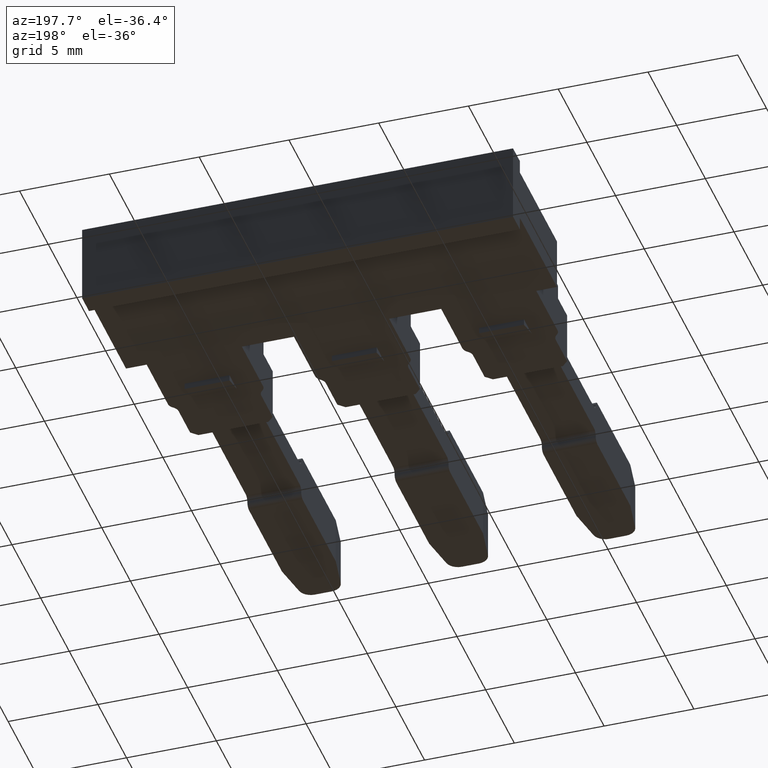
[diagram: clean part render]
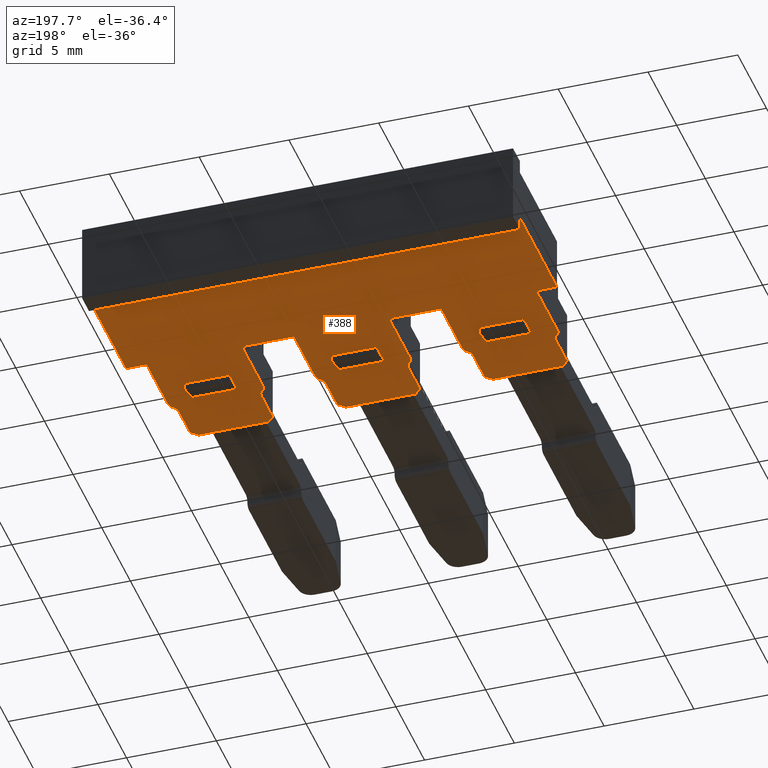
[diagram: same view with one face highlighted and labeled with its STEP entity id]
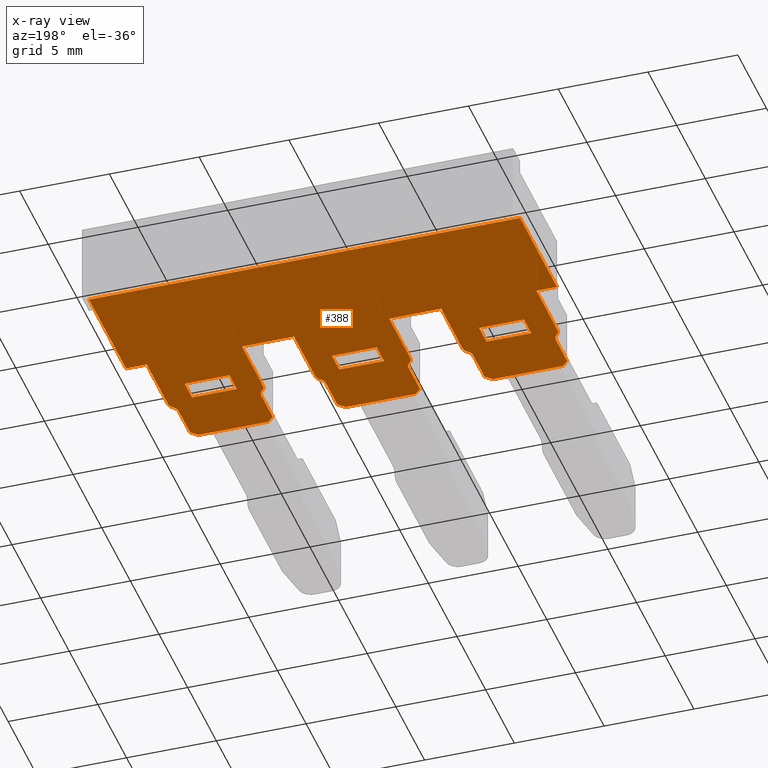
[diagram: x-ray of the same camera — body ghosted, the highlighted face saturated]
A machine part, auxiliary view. The second image highlights one B-rep face of the part: STEP entity #388.
The next image is the same camera in x-ray: the body ghosted, the highlighted face saturated — about 0% of this face is hidden behind the body in this view.
In plain terms, the highlighted planar face has unit normal (0, 0, 1).
Its self-contained STEP definition (entity closure, byte-faithful):
#2 = EDGE_CURVE ( 'NONE', #539, #521, #635, .T. ) ;
#10 = EDGE_CURVE ( 'NONE', #492, #526, #656, .T. ) ;
#16 = EDGE_CURVE ( 'NONE', #1622, #1625, #713, .T. ) ;
#21 = EDGE_CURVE ( 'NONE', #514, #526, #672, .T. ) ;
#23 = EDGE_CURVE ( 'NONE', #1540, #510, #715, .T. ) ;
#24 = EDGE_CURVE ( 'NONE', #499, #500, #3558, .T. ) ;
#52 = EDGE_CURVE ( 'NONE', #492, #510, #794, .T. ) ;
#54 = EDGE_CURVE ( 'NONE', #514, #539, #3577, .T. ) ;
#60 = EDGE_CURVE ( 'NONE', #1495, #491, #831, .T. ) ;
#62 = EDGE_CURVE ( 'NONE', #518, #504, #814, .T. ) ;
#65 = EDGE_CURVE ( 'NONE', #533, #507, #854, .T. ) ;
#67 = EDGE_CURVE ( 'NONE', #491, #502, #834, .T. ) ;
#68 = EDGE_CURVE ( 'NONE', #527, #501, #844, .T. ) ;
#71 = EDGE_CURVE ( 'NONE', #1625, #551, #843, .T. ) ;
#72 = EDGE_CURVE ( 'NONE', #1540, #500, #852, .T. ) ;
#73 = EDGE_CURVE ( 'NONE', #530, #584, #876, .T. ) ;
#79 = EDGE_CURVE ( 'NONE', #524, #489, #3573, .T. ) ;
#80 = EDGE_CURVE ( 'NONE', #544, #499, #884, .T. ) ;
#81 = EDGE_CURVE ( 'NONE', #517, #504, #892, .T. ) ;
#82 = EDGE_CURVE ( 'NONE', #546, #523, #863, .T. ) ;
#85 = EDGE_CURVE ( 'NONE', #1496, #1622, #861, .T. ) ;
#86 = EDGE_CURVE ( 'NONE', #538, #498, #916, .T. ) ;
#88 = EDGE_CURVE ( 'NONE', #546, #494, #3673, .T. ) ;
#89 = EDGE_CURVE ( 'NONE', #544, #1496, #3653, .T. ) ;
#94 = EDGE_CURVE ( 'NONE', #524, #522, #904, .T. ) ;
#96 = EDGE_CURVE ( 'NONE', #548, #525, #925, .T. ) ;
#100 = EDGE_CURVE ( 'NONE', #517, #535, #974, .T. ) ;
#101 = EDGE_CURVE ( 'NONE', #584, #512, #943, .T. ) ;
#106 = EDGE_CURVE ( 'NONE', #534, #569, #954, .T. ) ;
#107 = EDGE_CURVE ( 'NONE', #520, #537, #960, .T. ) ;
#108 = EDGE_CURVE ( 'NONE', #495, #521, #3679, .T. ) ;
#109 = EDGE_CURVE ( 'NONE', #540, #520, #3649, .T. ) ;
#110 = EDGE_CURVE ( 'NONE', #508, #522, #951, .T. ) ;
#112 = EDGE_CURVE ( 'NONE', #604, #559, #991, .T. ) ;
#113 = EDGE_CURVE ( 'NONE', #552, #559, #971, .T. ) ;
#116 = EDGE_CURVE ( 'NONE', #503, #497, #963, .T. ) ;
#120 = EDGE_CURVE ( 'NONE', #490, #1495, #1006, .T. ) ;
#121 = EDGE_CURVE ( 'NONE', #490, #537, #994, .T. ) ;
#125 = EDGE_CURVE ( 'NONE', #493, #552, #1008, .T. ) ;
#127 = EDGE_CURVE ( 'NONE', #540, #519, #1011, .T. ) ;
#131 = EDGE_CURVE ( 'NONE', #569, #564, #1061, .T. ) ;
#132 = EDGE_CURVE ( 'NONE', #497, #525, #3644, .T. ) ;
#138 = EDGE_CURVE ( 'NONE', #496, #489, #1049, .T. ) ;
#139 = EDGE_CURVE ( 'NONE', #498, #508, #1080, .T. ) ;
#146 = EDGE_CURVE ( 'NONE', #506, #495, #1103, .T. ) ;
#154 = EDGE_CURVE ( 'NONE', #505, #564, #1105, .T. ) ;
#155 = EDGE_CURVE ( 'NONE', #548, #501, #1106, .T. ) ;
#156 = EDGE_CURVE ( 'NONE', #534, #505, #1112, .T. ) ;
#157 = EDGE_CURVE ( 'NONE', #493, #604, #1107, .T. ) ;
#162 = EDGE_CURVE ( 'NONE', #494, #532, #1111, .T. ) ;
#164 = EDGE_CURVE ( 'NONE', #527, #523, #1161, .T. ) ;
#165 = EDGE_CURVE ( 'NONE', #519, #507, #3746, .T. ) ;
#166 = EDGE_CURVE ( 'NONE', #533, #535, #1135, .T. ) ;
#167 = EDGE_CURVE ( 'NONE', #530, #542, #1158, .T. ) ;
#173 = EDGE_CURVE ( 'NONE', #551, #532, #3703, .T. ) ;
#178 = EDGE_CURVE ( 'NONE', #542, #512, #1205, .T. ) ;
#179 = EDGE_CURVE ( 'NONE', #506, #502, #1177, .T. ) ;
#181 = EDGE_CURVE ( 'NONE', #518, #496, #3714, .T. ) ;
#185 = EDGE_CURVE ( 'NONE', #503, #538, #3699, .T. ) ;
#388 = ADVANCED_FACE ( 'NONE', ( #3468, #3446, #3461, #3459 ), #3483, .F. ) ;
#489 = VERTEX_POINT ( 'NONE', #2832 ) ;
#490 = VERTEX_POINT ( 'NONE', #2845 ) ;
#491 = VERTEX_POINT ( 'NONE', #2833 ) ;
#492 = VERTEX_POINT ( 'NONE', #2855 ) ;
#493 = VERTEX_POINT ( 'NONE', #2885 ) ;
#494 = VERTEX_POINT ( 'NONE', #2870 ) ;
#495 = VERTEX_POINT ( 'NONE', #2812 ) ;
#496 = VERTEX_POINT ( 'NONE', #2775 ) ;
#497 = VERTEX_POINT ( 'NONE', #2857 ) ;
#498 = VERTEX_POINT ( 'NONE', #2891 ) ;
#499 = VERTEX_POINT ( 'NONE', #2850 ) ;
#500 = VERTEX_POINT ( 'NONE', #2854 ) ;
#501 = VERTEX_POINT ( 'NONE', #2835 ) ;
#502 = VERTEX_POINT ( 'NONE', #2848 ) ;
#503 = VERTEX_POINT ( 'NONE', #2834 ) ;
#504 = VERTEX_POINT ( 'NONE', #2851 ) ;
#505 = VERTEX_POINT ( 'NONE', #2864 ) ;
#506 = VERTEX_POINT ( 'NONE', #2886 ) ;
#507 = VERTEX_POINT ( 'NONE', #2875 ) ;
#508 = VERTEX_POINT ( 'NONE', #2884 ) ;
#510 = VERTEX_POINT ( 'NONE', #2836 ) ;
#512 = VERTEX_POINT ( 'NONE', #2868 ) ;
#514 = VERTEX_POINT ( 'NONE', #2837 ) ;
#517 = VERTEX_POINT ( 'NONE', #2838 ) ;
#518 = VERTEX_POINT ( 'NONE', #2847 ) ;
#519 = VERTEX_POINT ( 'NONE', #2846 ) ;
#520 = VERTEX_POINT ( 'NONE', #2887 ) ;
#521 = VERTEX_POINT ( 'NONE', #2840 ) ;
#522 = VERTEX_POINT ( 'NONE', #2877 ) ;
#523 = VERTEX_POINT ( 'NONE', #2867 ) ;
#524 = VERTEX_POINT ( 'NONE', #2849 ) ;
#525 = VERTEX_POINT ( 'NONE', #2841 ) ;
#526 = VERTEX_POINT ( 'NONE', #2874 ) ;
#527 = VERTEX_POINT ( 'NONE', #2860 ) ;
#530 = VERTEX_POINT ( 'NONE', #2863 ) ;
#532 = VERTEX_POINT ( 'NONE', #2844 ) ;
#533 = VERTEX_POINT ( 'NONE', #2852 ) ;
#534 = VERTEX_POINT ( 'NONE', #2853 ) ;
#535 = VERTEX_POINT ( 'NONE', #2856 ) ;
#537 = VERTEX_POINT ( 'NONE', #2883 ) ;
#538 = VERTEX_POINT ( 'NONE', #2869 ) ;
#539 = VERTEX_POINT ( 'NONE', #2859 ) ;
#540 = VERTEX_POINT ( 'NONE', #2858 ) ;
#542 = VERTEX_POINT ( 'NONE', #2873 ) ;
#544 = VERTEX_POINT ( 'NONE', #2890 ) ;
#546 = VERTEX_POINT ( 'NONE', #2879 ) ;
#548 = VERTEX_POINT ( 'NONE', #2881 ) ;
#551 = VERTEX_POINT ( 'NONE', #2889 ) ;
#552 = VERTEX_POINT ( 'NONE', #2892 ) ;
#559 = VERTEX_POINT ( 'NONE', #2944 ) ;
#564 = VERTEX_POINT ( 'NONE', #2904 ) ;
#569 = VERTEX_POINT ( 'NONE', #2909 ) ;
#584 = VERTEX_POINT ( 'NONE', #2920 ) ;
#604 = VERTEX_POINT ( 'NONE', #2947 ) ;
#627 = CARTESIAN_POINT ( 'NONE',  ( 1132.290914677786500, 662.3843095299471300, -1.734723475976807100E-015 ) ) ;
#635 = LINE ( 'NONE', #627, #3546 ) ;
#656 = LINE ( 'NONE', #669, #3563 ) ;
#661 = DIRECTION ( 'NONE',  ( -0.7071156533801817900, 0.7070979088815909600, 0.0000000000000000000 ) ) ;
#669 = CARTESIAN_POINT ( 'NONE',  ( 1132.494466376607300, 659.9592804752735400, -1.734723475976807100E-015 ) ) ;
#672 = LINE ( 'NONE', #707, #3540 ) ;
#677 = DIRECTION ( 'NONE',  ( -0.7071067811865474600, 0.7071067811865474600, 0.0000000000000000000 ) ) ;
#679 = DIRECTION ( 'NONE',  ( 0.0000000000000000000, -1.000000000000000000, -0.0000000000000000000 ) ) ;
#695 = DIRECTION ( 'NONE',  ( 1.000000000000000000, 0.0000000000000000000, -0.0000000000000000000 ) ) ;
#701 = CARTESIAN_POINT ( 'NONE',  ( 1136.944468391975100, 666.4412584401425200, 0.0000000000000000000 ) ) ;
#707 = CARTESIAN_POINT ( 'NONE',  ( 1132.494468933274400, 662.7578638201010800, 0.0000000000000000000 ) ) ;
#713 = LINE ( 'NONE', #701, #3538 ) ;
#715 = LINE ( 'NONE', #724, #3556 ) ;
#724 = CARTESIAN_POINT ( 'NONE',  ( 1136.744471264188200, 659.6092820011524500, -1.734723475976807100E-015 ) ) ;
#730 = DIRECTION ( 'NONE',  ( 0.0000000000000000000, 0.0000000000000000000, 1.000000000000000000 ) ) ;
#734 = DIRECTION ( 'NONE',  ( -0.7071067811865474600, -0.7071067811865474600, 0.0000000000000000000 ) ) ;
#741 = CARTESIAN_POINT ( 'NONE',  ( 1137.594469738307700, 661.9736505214604000, 0.0000000000000000000 ) ) ;
#749 = DIRECTION ( 'NONE',  ( -1.000000000000000000, 1.332267629550334700E-012, 0.0000000000000000000 ) ) ;
#794 = LINE ( 'NONE', #795, #3629 ) ;
#795 = CARTESIAN_POINT ( 'NONE',  ( 1136.944468391975100, 659.6092820011524500, 0.0000000000000000000 ) ) ;
#797 = DIRECTION ( 'NONE',  ( 1.000000000000000000, 0.0000000000000000000, -0.0000000000000000000 ) ) ;
#810 = CARTESIAN_POINT ( 'NONE',  ( 1145.144468391975100, 659.6092820011524500, 0.0000000000000000000 ) ) ;
#811 = DIRECTION ( 'NONE',  ( 0.0000000000000000000, 0.0000000000000000000, 1.000000000000000000 ) ) ;
#813 = DIRECTION ( 'NONE',  ( -0.0000000000000000000, 1.000000000000000000, 0.0000000000000000000 ) ) ;
#814 = LINE ( 'NONE', #851, #3580 ) ;
#816 = DIRECTION ( 'NONE',  ( 0.0000000000000000000, -1.000000000000000000, -0.0000000000000000000 ) ) ;
#825 = CARTESIAN_POINT ( 'NONE',  ( 1136.944468391975100, 672.9078760720548200, 0.0000000000000000000 ) ) ;
#826 = CARTESIAN_POINT ( 'NONE',  ( 1131.994468426628400, 661.9736497164254800, 0.0000000000000000000 ) ) ;
#828 = DIRECTION ( 'NONE',  ( -1.000000000000000000, -0.0000000000000000000, 0.0000000000000000000 ) ) ;
#831 = LINE ( 'NONE', #825, #3583 ) ;
#834 = LINE ( 'NONE', #837, #3603 ) ;
#837 = CARTESIAN_POINT ( 'NONE',  ( 1130.994470802330200, 662.7578638201010800, 0.0000000000000000000 ) ) ;
#841 = DIRECTION ( 'NONE',  ( 0.0000000000000000000, -1.000000000000000000, -0.0000000000000000000 ) ) ;
#843 = LINE ( 'NONE', #894, #3593 ) ;
#844 = LINE ( 'NONE', #810, #3604 ) ;
#849 = DIRECTION ( 'NONE',  ( -1.000000000000000000, -6.661331397871163300E-013, 0.0000000000000000000 ) ) ;
#851 = CARTESIAN_POINT ( 'NONE',  ( 1148.894468933274800, 662.7578638201010800, 0.0000000000000000000 ) ) ;
#852 = LINE ( 'NONE', #901, #3614 ) ;
#854 = LINE ( 'NONE', #855, #3599 ) ;
#855 = CARTESIAN_POINT ( 'NONE',  ( 1153.494474435155100, 662.7578638201010800, 0.0000000000000000000 ) ) ;
#856 = CARTESIAN_POINT ( 'NONE',  ( 1152.444467917465300, 662.9078760720548200, -8.673617379884035500E-016 ) ) ;
#860 = CARTESIAN_POINT ( 'NONE',  ( 1140.694468933274500, 662.7578638201010800, 0.0000000000000000000 ) ) ;
#861 = LINE ( 'NONE', #864, #3672 ) ;
#863 = LINE ( 'NONE', #860, #3662 ) ;
#864 = CARTESIAN_POINT ( 'NONE',  ( 1137.444466905616100, 662.7578638201010800, 0.0000000000000000000 ) ) ;
#865 = DIRECTION ( 'NONE',  ( -0.0000000000000000000, 1.000000000000000000, 0.0000000000000000000 ) ) ;
#871 = DIRECTION ( 'NONE',  ( -1.000000000000000000, -2.220454189456208500E-013, 0.0000000000000000000 ) ) ;
#876 = LINE ( 'NONE', #856, #3616 ) ;
#879 = CARTESIAN_POINT ( 'NONE',  ( 1149.044463937493400, 662.7378604502047200, 0.0000000000000000000 ) ) ;
#880 = DIRECTION ( 'NONE',  ( -0.7071067811865474600, 0.7071067811865474600, 0.0000000000000000000 ) ) ;
#881 = DIRECTION ( 'NONE',  ( 0.0000000000000000000, -1.000000000000000000, -0.0000000000000000000 ) ) ;
#883 = DIRECTION ( 'NONE',  ( 0.0000000000000000000, 0.0000000000000000000, 1.000000000000000000 ) ) ;
#884 = LINE ( 'NONE', #885, #3685 ) ;
#885 = CARTESIAN_POINT ( 'NONE',  ( 1137.240915542681300, 662.3272031070188200, 0.0000000000000000000 ) ) ;
#887 = DIRECTION ( 'NONE',  ( -0.7070870645724811600, -0.7071264972508609600, 0.0000000000000000000 ) ) ;
#892 = LINE ( 'NONE', #899, #3640 ) ;
#893 = DIRECTION ( 'NONE',  ( 1.000000000000000000, 0.0000000000000000000, -0.0000000000000000000 ) ) ;
#894 = CARTESIAN_POINT ( 'NONE',  ( 1140.344467917465200, 662.7578638201010800, 0.0000000000000000000 ) ) ;
#896 = DIRECTION ( 'NONE',  ( 0.0000000000000000000, -1.000000000000000000, -0.0000000000000000000 ) ) ;
#897 = DIRECTION ( 'NONE',  ( -1.000000000000000000, 0.0000000000000000000, 0.0000000000000000000 ) ) ;
#899 = CARTESIAN_POINT ( 'NONE',  ( 1149.244469547574200, 659.6092820011524500, -1.734723475976807100E-015 ) ) ;
#901 = CARTESIAN_POINT ( 'NONE',  ( 1137.094469738309300, 662.7578638201010800, 0.0000000000000000000 ) ) ;
#903 = DIRECTION ( 'NONE',  ( -1.000000000000000000, -6.661331397871163300E-013, 0.0000000000000000000 ) ) ;
#904 = LINE ( 'NONE', #945, #3645 ) ;
#905 = DIRECTION ( 'NONE',  ( 0.0000000000000000000, 0.0000000000000000000, 1.000000000000000000 ) ) ;
#913 = DIRECTION ( 'NONE',  ( -0.0000000000000000000, 1.000000000000000000, 0.0000000000000000000 ) ) ;
#916 = LINE ( 'NONE', #930, #3676 ) ;
#917 = DIRECTION ( 'NONE',  ( 0.0000000000000000000, 0.0000000000000000000, 1.000000000000000000 ) ) ;
#919 = CARTESIAN_POINT ( 'NONE',  ( 1136.944468391975100, 662.7378638201009800, 0.0000000000000000000 ) ) ;
#922 = CARTESIAN_POINT ( 'NONE',  ( 1145.294469738309100, 662.7578638201010800, 0.0000000000000000000 ) ) ;
#925 = LINE ( 'NONE', #922, #3677 ) ;
#927 = DIRECTION ( 'NONE',  ( 1.853939984963251300E-006, 0.9999999999982813700, 0.0000000000000000000 ) ) ;
#930 = CARTESIAN_POINT ( 'NONE',  ( 1145.644466905616100, 662.7578638201010800, 0.0000000000000000000 ) ) ;
#932 = DIRECTION ( 'NONE',  ( -0.0000000000000000000, 1.000000000000000000, 0.0000000000000000000 ) ) ;
#934 = CARTESIAN_POINT ( 'NONE',  ( 1140.194468426628200, 661.9736497164254800, 0.0000000000000000000 ) ) ;
#939 = DIRECTION ( 'NONE',  ( -1.000000000000000000, 0.0000000000000000000, 0.0000000000000000000 ) ) ;
#943 = LINE ( 'NONE', #987, #3654 ) ;
#945 = CARTESIAN_POINT ( 'NONE',  ( 1148.544465770546100, 662.7578673721997100, 0.0000000000000000000 ) ) ;
#946 = DIRECTION ( 'NONE',  ( -0.0000000000000000000, 1.000000000000000000, 0.0000000000000000000 ) ) ;
#949 = CARTESIAN_POINT ( 'NONE',  ( 1144.244467917465300, 664.2078760720547700, -8.673617379884035500E-016 ) ) ;
#951 = LINE ( 'NONE', #953, #3658 ) ;
#953 = CARTESIAN_POINT ( 'NONE',  ( 1148.544472599332000, 662.7578638201010800, 0.0000000000000000000 ) ) ;
#954 = LINE ( 'NONE', #956, #3655 ) ;
#956 = CARTESIAN_POINT ( 'NONE',  ( 1136.044467917465200, 662.9078760720548200, -8.673617379884035500E-016 ) ) ;
#960 = LINE ( 'NONE', #988, #3648 ) ;
#961 = DIRECTION ( 'NONE',  ( 0.0000000000000000000, 0.0000000000000000000, 1.000000000000000000 ) ) ;
#962 = DIRECTION ( 'NONE',  ( 0.0000000000000000000, -1.000000000000000000, -0.0000000000000000000 ) ) ;
#963 = LINE ( 'NONE', #969, #3665 ) ;
#964 = DIRECTION ( 'NONE',  ( -1.000000000000000000, 0.0000000000000000000, 0.0000000000000000000 ) ) ;
#965 = CARTESIAN_POINT ( 'NONE',  ( 1153.344472601745100, 662.7378623612644300, 0.0000000000000000000 ) ) ;
#966 = DIRECTION ( 'NONE',  ( -1.000000000000000000, 0.0000000000000000000, 0.0000000000000000000 ) ) ;
#967 = CARTESIAN_POINT ( 'NONE',  ( 1132.644468432835100, 662.7378632849956800, 0.0000000000000000000 ) ) ;
#968 = DIRECTION ( 'NONE',  ( -1.000000000000000000, 0.0000000000000000000, 0.0000000000000000000 ) ) ;
#969 = CARTESIAN_POINT ( 'NONE',  ( 1145.440915542681300, 662.3272031070188200, 0.0000000000000000000 ) ) ;
#971 = LINE ( 'NONE', #972, #3632 ) ;
#972 = CARTESIAN_POINT ( 'NONE',  ( 1141.744467917465300, 662.9078760720548200, -8.673617379884035500E-016 ) ) ;
#974 = LINE ( 'NONE', #981, #3657 ) ;
#977 = DIRECTION ( 'NONE',  ( -0.0000000000000000000, 1.000000000000000000, 0.0000000000000000000 ) ) ;
#980 = DIRECTION ( 'NONE',  ( 0.0000000000000000000, 1.000000000000000000, 0.0000000000000000000 ) ) ;
#981 = CARTESIAN_POINT ( 'NONE',  ( 1145.144468391975100, 659.6092820011524500, 0.0000000000000000000 ) ) ;
#983 = DIRECTION ( 'NONE',  ( 1.000000000000000000, 0.0000000000000000000, -0.0000000000000000000 ) ) ;
#987 = CARTESIAN_POINT ( 'NONE',  ( 1149.944467917465300, 662.9078760720548200, -8.673617379884035500E-016 ) ) ;
#988 = CARTESIAN_POINT ( 'NONE',  ( 1153.844475124394400, 662.7578638201010800, 0.0000000000000000000 ) ) ;
#989 = DIRECTION ( 'NONE',  ( 0.0000000000000000000, 1.000000000000000000, 0.0000000000000000000 ) ) ;
#991 = LINE ( 'NONE', #949, #3631 ) ;
#992 = DIRECTION ( 'NONE',  ( -1.000000000000000000, 0.0000000000000000000, 0.0000000000000000000 ) ) ;
#993 = DIRECTION ( 'NONE',  ( 0.0000000000000000000, 0.0000000000000000000, 1.000000000000000000 ) ) ;
#994 = LINE ( 'NONE', #997, #3688 ) ;
#997 = CARTESIAN_POINT ( 'NONE',  ( 1154.994472239529600, 666.4412575163982000, 0.0000000000000000000 ) ) ;
#1001 = CARTESIAN_POINT ( 'NONE',  ( 1154.994472239529600, 662.7578638201010800, 0.0000000000000000000 ) ) ;
#1002 = DIRECTION ( 'NONE',  ( -0.0000000000000000000, 1.000000000000000000, 0.0000000000000000000 ) ) ;
#1006 = LINE ( 'NONE', #1001, #3689 ) ;
#1008 = LINE ( 'NONE', #1029, #3633 ) ;
#1010 = DIRECTION ( 'NONE',  ( -1.000000000000000000, 0.0000000000000000000, 0.0000000000000000000 ) ) ;
#1011 = LINE ( 'NONE', #1014, #3671 ) ;
#1014 = CARTESIAN_POINT ( 'NONE',  ( 1153.698028993211400, 662.3843084039157200, 0.0000000000000000000 ) ) ;
#1025 = DIRECTION ( 'NONE',  ( -0.7071161435833248600, -0.7070974186658064400, 0.0000000000000000000 ) ) ;
#1029 = CARTESIAN_POINT ( 'NONE',  ( 1144.244467917465300, 662.9078760720548200, -8.673617379884035500E-016 ) ) ;
#1031 = DIRECTION ( 'NONE',  ( -1.000000000000000000, -0.0000000000000000000, 0.0000000000000000000 ) ) ;
#1034 = DIRECTION ( 'NONE',  ( -0.7070870645724811600, -0.7071264972508609600, 0.0000000000000000000 ) ) ;
#1046 = DIRECTION ( 'NONE',  ( 0.0000000000000000000, 1.000000000000000000, 0.0000000000000000000 ) ) ;
#1049 = LINE ( 'NONE', #1055, #3700 ) ;
#1052 = CARTESIAN_POINT ( 'NONE',  ( 1133.544467917465200, 662.9078760720548200, -8.673617379884035500E-016 ) ) ;
#1055 = CARTESIAN_POINT ( 'NONE',  ( 1148.748018761588600, 662.3272075669629000, -1.734723475976807100E-015 ) ) ;
#1060 = DIRECTION ( 'NONE',  ( 1.000000000000000000, 0.0000000000000000000, -0.0000000000000000000 ) ) ;
#1061 = LINE ( 'NONE', #1052, #3681 ) ;
#1067 = CARTESIAN_POINT ( 'NONE',  ( 1145.794469738307500, 661.9736505214604000, 0.0000000000000000000 ) ) ;
#1068 = DIRECTION ( 'NONE',  ( 0.0000000000000000000, 0.0000000000000000000, 1.000000000000000000 ) ) ;
#1069 = CARTESIAN_POINT ( 'NONE',  ( 1145.144468391975100, 666.4412584401425200, 0.0000000000000000000 ) ) ;
#1077 = DIRECTION ( 'NONE',  ( -0.7071447321500710100, 0.7070688281860574300, 0.0000000000000000000 ) ) ;
#1079 = DIRECTION ( 'NONE',  ( -1.000000000000000000, 1.332267629550334700E-012, 0.0000000000000000000 ) ) ;
#1080 = LINE ( 'NONE', #1069, #3695 ) ;
#1086 = DIRECTION ( 'NONE',  ( 0.0000000000000000000, -1.000000000000000000, -0.0000000000000000000 ) ) ;
#1092 = CARTESIAN_POINT ( 'NONE',  ( 1144.944471264188000, 659.6092820011524500, -1.734723475976807100E-015 ) ) ;
#1096 = CARTESIAN_POINT ( 'NONE',  ( 1136.044467917465200, 664.2078760720547700, -8.673617379884035500E-016 ) ) ;
#1097 = DIRECTION ( 'NONE',  ( -1.000000000000000000, 0.0000000000000000000, 0.0000000000000000000 ) ) ;
#1103 = LINE ( 'NONE', #1131, #3702 ) ;
#1105 = LINE ( 'NONE', #1096, #3739 ) ;
#1106 = LINE ( 'NONE', #1092, #3745 ) ;
#1107 = LINE ( 'NONE', #1113, #3720 ) ;
#1111 = LINE ( 'NONE', #1172, #3736 ) ;
#1112 = LINE ( 'NONE', #1122, #3718 ) ;
#1113 = CARTESIAN_POINT ( 'NONE',  ( 1144.244467917465300, 662.9078760720548200, -8.673617379884035500E-016 ) ) ;
#1114 = DIRECTION ( 'NONE',  ( 0.0000000000000000000, 1.000000000000000000, 0.0000000000000000000 ) ) ;
#1121 = DIRECTION ( 'NONE',  ( -0.7071067811865474600, -0.7071067811865474600, 0.0000000000000000000 ) ) ;
#1122 = CARTESIAN_POINT ( 'NONE',  ( 1136.044467917465200, 662.9078760720548200, -8.673617379884035500E-016 ) ) ;
#1123 = DIRECTION ( 'NONE',  ( 0.0000000000000000000, 1.000000000000000000, 0.0000000000000000000 ) ) ;
#1131 = CARTESIAN_POINT ( 'NONE',  ( 1132.144467917465400, 662.7578638201010800, 0.0000000000000000000 ) ) ;
#1135 = LINE ( 'NONE', #1149, #3697 ) ;
#1136 = CARTESIAN_POINT ( 'NONE',  ( 1153.994471684214700, 661.9736497164279900, 0.0000000000000000000 ) ) ;
#1141 = DIRECTION ( 'NONE',  ( -1.000000000000000000, 0.0000000000000000000, 0.0000000000000000000 ) ) ;
#1143 = CARTESIAN_POINT ( 'NONE',  ( 1152.444467917465300, 662.9078760720548200, -8.673617379884035500E-016 ) ) ;
#1146 = DIRECTION ( 'NONE',  ( -0.7071067811865474600, -0.7071067811865474600, 0.0000000000000000000 ) ) ;
#1149 = CARTESIAN_POINT ( 'NONE',  ( 1153.494474435155100, 659.9592804752735400, -1.734723475976807100E-015 ) ) ;
#1150 = CARTESIAN_POINT ( 'NONE',  ( 1140.694466376607100, 659.9592804752735400, -1.734723475976807100E-015 ) ) ;
#1154 = DIRECTION ( 'NONE',  ( 0.0000000000000000000, 0.0000000000000000000, 1.000000000000000000 ) ) ;
#1158 = LINE ( 'NONE', #1143, #3747 ) ;
#1161 = LINE ( 'NONE', #1150, #3693 ) ;
#1163 = DIRECTION ( 'NONE',  ( 0.0000000000000000000, 1.000000000000000000, 0.0000000000000000000 ) ) ;
#1164 = DIRECTION ( 'NONE',  ( 0.0000000000000000000, 0.0000000000000000000, 1.000000000000000000 ) ) ;
#1166 = DIRECTION ( 'NONE',  ( -1.000000000000000000, 0.0000000000000000000, 0.0000000000000000000 ) ) ;
#1170 = CARTESIAN_POINT ( 'NONE',  ( 1140.844468432835100, 662.7378632849956800, 0.0000000000000000000 ) ) ;
#1172 = CARTESIAN_POINT ( 'NONE',  ( 1140.490914677786300, 662.3843095299471300, -1.734723475976807100E-015 ) ) ;
#1174 = DIRECTION ( 'NONE',  ( -0.7071156533801817900, 0.7070979088815909600, 0.0000000000000000000 ) ) ;
#1175 = DIRECTION ( 'NONE',  ( -0.7071067811865474600, 0.7071067811865474600, 0.0000000000000000000 ) ) ;
#1177 = LINE ( 'NONE', #1207, #3709 ) ;
#1178 = CARTESIAN_POINT ( 'NONE',  ( 1148.394466766061700, 661.9736497164254800, 0.0000000000000000000 ) ) ;
#1179 = CARTESIAN_POINT ( 'NONE',  ( 1152.444467917465300, 664.2078760720547700, -8.673617379884035500E-016 ) ) ;
#1183 = DIRECTION ( 'NONE',  ( -1.000000000000000000, 0.0000000000000000000, 0.0000000000000000000 ) ) ;
#1186 = DIRECTION ( 'NONE',  ( 0.0000000000000000000, 0.0000000000000000000, 1.000000000000000000 ) ) ;
#1188 = DIRECTION ( 'NONE',  ( -1.000000000000000000, 0.0000000000000000000, 0.0000000000000000000 ) ) ;
#1189 = DIRECTION ( 'NONE',  ( -1.000000000000000000, -0.0000000000000000000, 0.0000000000000000000 ) ) ;
#1205 = LINE ( 'NONE', #1179, #3701 ) ;
#1207 = CARTESIAN_POINT ( 'NONE',  ( 1130.994470802330200, 666.4412584401425200, 0.0000000000000000000 ) ) ;
#1209 = CARTESIAN_POINT ( 'NONE',  ( 1145.144468391975100, 662.7378638201009800, 0.0000000000000000000 ) ) ;
#1214 = DIRECTION ( 'NONE',  ( -1.000000000000000000, 0.0000000000000000000, 0.0000000000000000000 ) ) ;
#1215 = DIRECTION ( 'NONE',  ( 0.0000000000000000000, 0.0000000000000000000, 1.000000000000000000 ) ) ;
#1495 = VERTEX_POINT ( 'NONE', #2965 ) ;
#1496 = VERTEX_POINT ( 'NONE', #2975 ) ;
#1540 = VERTEX_POINT ( 'NONE', #3057 ) ;
#1622 = VERTEX_POINT ( 'NONE', #3065 ) ;
#1625 = VERTEX_POINT ( 'NONE', #3036 ) ;
#1702 = ORIENTED_EDGE ( 'NONE', *, *, #167, .T. ) ;
#1703 = ORIENTED_EDGE ( 'NONE', *, *, #164, .T. ) ;
#1704 = ORIENTED_EDGE ( 'NONE', *, *, #24, .T. ) ;
#1705 = ORIENTED_EDGE ( 'NONE', *, *, #181, .T. ) ;
#1706 = ORIENTED_EDGE ( 'NONE', *, *, #89, .F. ) ;
#1707 = ORIENTED_EDGE ( 'NONE', *, *, #52, .F. ) ;
#1708 = ORIENTED_EDGE ( 'NONE', *, *, #23, .T. ) ;
#1709 = ORIENTED_EDGE ( 'NONE', *, *, #86, .F. ) ;
#1710 = ORIENTED_EDGE ( 'NONE', *, *, #185, .F. ) ;
#1711 = ORIENTED_EDGE ( 'NONE', *, *, #67, .F. ) ;
#1713 = ORIENTED_EDGE ( 'NONE', *, *, #79, .F. ) ;
#1714 = ORIENTED_EDGE ( 'NONE', *, *, #138, .T. ) ;
#1715 = ORIENTED_EDGE ( 'NONE', *, *, #10, .T. ) ;
#1716 = ORIENTED_EDGE ( 'NONE', *, *, #179, .T. ) ;
#1717 = ORIENTED_EDGE ( 'NONE', *, *, #85, .F. ) ;
#1721 = ORIENTED_EDGE ( 'NONE', *, *, #80, .T. ) ;
#1722 = ORIENTED_EDGE ( 'NONE', *, *, #178, .T. ) ;
#1723 = ORIENTED_EDGE ( 'NONE', *, *, #146, .F. ) ;
#1724 = ORIENTED_EDGE ( 'NONE', *, *, #71, .F. ) ;
#1725 = ORIENTED_EDGE ( 'NONE', *, *, #62, .F. ) ;
#1727 = ORIENTED_EDGE ( 'NONE', *, *, #100, .F. ) ;
#1728 = ORIENTED_EDGE ( 'NONE', *, *, #73, .F. ) ;
#1730 = ORIENTED_EDGE ( 'NONE', *, *, #120, .F. ) ;
#1731 = ORIENTED_EDGE ( 'NONE', *, *, #16, .F. ) ;
#1732 = ORIENTED_EDGE ( 'NONE', *, *, #162, .T. ) ;
#1733 = ORIENTED_EDGE ( 'NONE', *, *, #21, .F. ) ;
#1734 = ORIENTED_EDGE ( 'NONE', *, *, #60, .F. ) ;
#1737 = ORIENTED_EDGE ( 'NONE', *, *, #68, .F. ) ;
#1738 = ORIENTED_EDGE ( 'NONE', *, *, #94, .T. ) ;
#1739 = ORIENTED_EDGE ( 'NONE', *, *, #72, .F. ) ;
#1740 = ORIENTED_EDGE ( 'NONE', *, *, #81, .T. ) ;
#1741 = ORIENTED_EDGE ( 'NONE', *, *, #54, .T. ) ;
#1742 = ORIENTED_EDGE ( 'NONE', *, *, #108, .F. ) ;
#1743 = ORIENTED_EDGE ( 'NONE', *, *, #132, .T. ) ;
#1744 = ORIENTED_EDGE ( 'NONE', *, *, #110, .F. ) ;
#1745 = ORIENTED_EDGE ( 'NONE', *, *, #165, .T. ) ;
#1746 = ORIENTED_EDGE ( 'NONE', *, *, #2, .T. ) ;
#1747 = ORIENTED_EDGE ( 'NONE', *, *, #121, .T. ) ;
#1748 = ORIENTED_EDGE ( 'NONE', *, *, #88, .T. ) ;
#1749 = ORIENTED_EDGE ( 'NONE', *, *, #101, .F. ) ;
#1750 = ORIENTED_EDGE ( 'NONE', *, *, #109, .F. ) ;
#1752 = ORIENTED_EDGE ( 'NONE', *, *, #127, .T. ) ;
#1753 = ORIENTED_EDGE ( 'NONE', *, *, #154, .T. ) ;
#1755 = ORIENTED_EDGE ( 'NONE', *, *, #155, .T. ) ;
#1757 = ORIENTED_EDGE ( 'NONE', *, *, #166, .T. ) ;
#1758 = ORIENTED_EDGE ( 'NONE', *, *, #107, .F. ) ;
#1759 = ORIENTED_EDGE ( 'NONE', *, *, #82, .F. ) ;
#1760 = ORIENTED_EDGE ( 'NONE', *, *, #173, .F. ) ;
#1761 = ORIENTED_EDGE ( 'NONE', *, *, #139, .F. ) ;
#1762 = ORIENTED_EDGE ( 'NONE', *, *, #65, .F. ) ;
#1763 = ORIENTED_EDGE ( 'NONE', *, *, #96, .F. ) ;
#1764 = ORIENTED_EDGE ( 'NONE', *, *, #116, .T. ) ;
#1770 = ORIENTED_EDGE ( 'NONE', *, *, #157, .T. ) ;
#1774 = ORIENTED_EDGE ( 'NONE', *, *, #113, .F. ) ;
#1781 = ORIENTED_EDGE ( 'NONE', *, *, #125, .F. ) ;
#1797 = ORIENTED_EDGE ( 'NONE', *, *, #131, .F. ) ;
#1800 = ORIENTED_EDGE ( 'NONE', *, *, #156, .T. ) ;
#1813 = ORIENTED_EDGE ( 'NONE', *, *, #106, .F. ) ;
#1819 = ORIENTED_EDGE ( 'NONE', *, *, #112, .T. ) ;
#2323 = EDGE_LOOP ( 'NONE', ( #1724, #1731, #1717, #1706, #1721, #1704, #1739, #1708, #1707, #1715, #1733, #1741, #1746, #1742, #1723, #1716, #1711, #1734, #1730, #1747, #1758, #1750, #1752, #1745, #1762, #1757, #1727, #1740, #1725, #1705, #1714, #1713, #1738, #1744, #1761, #1709, #1710, #1764, #1743, #1763, #1755, #1737, #1703, #1759, #1748, #1732, #1760 ) ) ;
#2324 = EDGE_LOOP ( 'NONE', ( #1728, #1702, #1722, #1749 ) ) ;
#2349 = EDGE_LOOP ( 'NONE', ( #1813, #1800, #1753, #1797 ) ) ;
#2364 = EDGE_LOOP ( 'NONE', ( #1781, #1770, #1819, #1774 ) ) ;
#2775 = CARTESIAN_POINT ( 'NONE',  ( 1148.748018761588600, 662.3272075669629000, -8.673617379884035500E-016 ) ) ;
#2812 = CARTESIAN_POINT ( 'NONE',  ( 1132.144467917441300, 662.7378632849956800, 0.0000000000000000000 ) ) ;
#2832 = CARTESIAN_POINT ( 'NONE',  ( 1148.690911843030100, 662.3843083557416100, -8.673617379884035500E-016 ) ) ;
#2833 = CARTESIAN_POINT ( 'NONE',  ( 1130.994470802330200, 672.9078760720548200, 0.0000000000000000000 ) ) ;
#2834 = CARTESIAN_POINT ( 'NONE',  ( 1145.498019600217000, 662.3843103491215100, 0.0000000000000000000 ) ) ;
#2835 = CARTESIAN_POINT ( 'NONE',  ( 1144.944471264188000, 659.6092820011524500, -1.301042606982605300E-015 ) ) ;
#2836 = CARTESIAN_POINT ( 'NONE',  ( 1136.744471264188200, 659.6092820011524500, -1.301042606982605300E-015 ) ) ;
#2837 = CARTESIAN_POINT ( 'NONE',  ( 1132.494468933274400, 661.9736497164254800, -1.084202172485504400E-016 ) ) ;
#2838 = CARTESIAN_POINT ( 'NONE',  ( 1149.244469547574200, 659.6092820011524500, -8.673617379884035500E-016 ) ) ;
#2840 = CARTESIAN_POINT ( 'NONE',  ( 1132.290916895879000, 662.3843073119102200, 0.0000000000000000000 ) ) ;
#2841 = CARTESIAN_POINT ( 'NONE',  ( 1145.294469738309100, 661.9736498846202700, 0.0000000000000000000 ) ) ;
#2844 = CARTESIAN_POINT ( 'NONE',  ( 1140.490916895879100, 662.3843073119102200, 0.0000000000000000000 ) ) ;
#2845 = CARTESIAN_POINT ( 'NONE',  ( 1154.994472239529600, 666.4412575163982000, 0.0000000000000000000 ) ) ;
#2846 = CARTESIAN_POINT ( 'NONE',  ( 1153.640922579462800, 662.3272035023839000, 0.0000000000000000000 ) ) ;
#2847 = CARTESIAN_POINT ( 'NONE',  ( 1148.894468933274800, 661.9736497164254800, -1.084202172485504400E-016 ) ) ;
#2848 = CARTESIAN_POINT ( 'NONE',  ( 1130.994470802330200, 666.4412584401425200, 0.0000000000000000000 ) ) ;
#2849 = CARTESIAN_POINT ( 'NONE',  ( 1148.544465751977200, 662.7378609136880000, 0.0000000000000000000 ) ) ;
#2850 = CARTESIAN_POINT ( 'NONE',  ( 1137.240915542681300, 662.3272031070188200, 0.0000000000000000000 ) ) ;
#2851 = CARTESIAN_POINT ( 'NONE',  ( 1148.894470360060300, 659.9592811886663000, -1.156482317317871300E-015 ) ) ;
#2852 = CARTESIAN_POINT ( 'NONE',  ( 1153.494474435155100, 659.9592804752735400, -5.782411586589356700E-016 ) ) ;
#2853 = CARTESIAN_POINT ( 'NONE',  ( 1136.044467917465200, 662.9078760720548200, 0.0000000000000000000 ) ) ;
#2854 = CARTESIAN_POINT ( 'NONE',  ( 1137.094469738309300, 661.9736498846202700, 0.0000000000000000000 ) ) ;
#2855 = CARTESIAN_POINT ( 'NONE',  ( 1132.844464850728400, 659.6092820011524500, -8.673617379884035500E-016 ) ) ;
#2856 = CARTESIAN_POINT ( 'NONE',  ( 1153.144475961034000, 659.6092820011524500, -1.301042606982605300E-015 ) ) ;
#2857 = CARTESIAN_POINT ( 'NONE',  ( 1145.440915542681300, 662.3272031070188200, 0.0000000000000000000 ) ) ;
#2858 = CARTESIAN_POINT ( 'NONE',  ( 1153.698026633855800, 662.3843060446221200, 0.0000000000000000000 ) ) ;
#2859 = CARTESIAN_POINT ( 'NONE',  ( 1132.348017319408200, 662.3272083212701800, -8.673617379884035500E-016 ) ) ;
#2860 = CARTESIAN_POINT ( 'NONE',  ( 1141.044464850728200, 659.6092820011524500, -8.673617379884035500E-016 ) ) ;
#2863 = CARTESIAN_POINT ( 'NONE',  ( 1152.444467917465300, 662.9078760720548200, 0.0000000000000000000 ) ) ;
#2864 = CARTESIAN_POINT ( 'NONE',  ( 1136.044467917465200, 664.2078760720547700, 0.0000000000000000000 ) ) ;
#2867 = CARTESIAN_POINT ( 'NONE',  ( 1140.694467228829800, 659.9592796230510900, -1.156482317317871300E-015 ) ) ;
#2868 = CARTESIAN_POINT ( 'NONE',  ( 1149.944467917465300, 664.2078760720547700, -8.673617379884035500E-016 ) ) ;
#2869 = CARTESIAN_POINT ( 'NONE',  ( 1145.644466905616100, 662.7378672810804100, 0.0000000000000000000 ) ) ;
#2870 = CARTESIAN_POINT ( 'NONE',  ( 1140.548017319408200, 662.3272083212701800, -8.673617379884035500E-016 ) ) ;
#2873 = CARTESIAN_POINT ( 'NONE',  ( 1152.444467917465300, 664.2078760720547700, 0.0000000000000000000 ) ) ;
#2874 = CARTESIAN_POINT ( 'NONE',  ( 1132.494467228829800, 659.9592796230510900, -1.156482317317871300E-015 ) ) ;
#2875 = CARTESIAN_POINT ( 'NONE',  ( 1153.494474435155100, 661.9736494821041800, 0.0000000000000000000 ) ) ;
#2877 = CARTESIAN_POINT ( 'NONE',  ( 1148.544468715539100, 664.2361151296617000, 0.0000000000000000000 ) ) ;
#2879 = CARTESIAN_POINT ( 'NONE',  ( 1140.694468933274500, 661.9736497164254800, -1.084202172485504400E-016 ) ) ;
#2881 = CARTESIAN_POINT ( 'NONE',  ( 1145.294469738309100, 659.9592804752735400, -5.782411586589356700E-016 ) ) ;
#2883 = CARTESIAN_POINT ( 'NONE',  ( 1153.844475124394400, 666.4412575163982000, 0.0000000000000000000 ) ) ;
#2884 = CARTESIAN_POINT ( 'NONE',  ( 1148.544472599332000, 666.4412584401425200, 0.0000000000000000000 ) ) ;
#2885 = CARTESIAN_POINT ( 'NONE',  ( 1144.244467917465300, 662.9078760720548200, 0.0000000000000000000 ) ) ;
#2886 = CARTESIAN_POINT ( 'NONE',  ( 1132.144467917465400, 666.4412584401425200, 0.0000000000000000000 ) ) ;
#2887 = CARTESIAN_POINT ( 'NONE',  ( 1153.844475124394400, 662.7378658222389700, 0.0000000000000000000 ) ) ;
#2889 = CARTESIAN_POINT ( 'NONE',  ( 1140.344467917441300, 662.7378632849956800, 0.0000000000000000000 ) ) ;
#2890 = CARTESIAN_POINT ( 'NONE',  ( 1137.298019600217200, 662.3843103491215100, 0.0000000000000000000 ) ) ;
#2891 = CARTESIAN_POINT ( 'NONE',  ( 1145.644466905616100, 666.4412584401425200, 0.0000000000000000000 ) ) ;
#2892 = CARTESIAN_POINT ( 'NONE',  ( 1141.744467917465300, 662.9078760720548200, 0.0000000000000000000 ) ) ;
#2904 = CARTESIAN_POINT ( 'NONE',  ( 1133.544467917465200, 664.2078760720547700, -8.673617379884035500E-016 ) ) ;
#2909 = CARTESIAN_POINT ( 'NONE',  ( 1133.544467917465200, 662.9078760720548200, 0.0000000000000000000 ) ) ;
#2920 = CARTESIAN_POINT ( 'NONE',  ( 1149.944467917465300, 662.9078760720548200, 0.0000000000000000000 ) ) ;
#2944 = CARTESIAN_POINT ( 'NONE',  ( 1141.744467917465300, 664.2078760720547700, -8.673617379884035500E-016 ) ) ;
#2947 = CARTESIAN_POINT ( 'NONE',  ( 1144.244467917465300, 664.2078760720547700, 0.0000000000000000000 ) ) ;
#2965 = CARTESIAN_POINT ( 'NONE',  ( 1154.994472239529600, 672.9078760720548200, 0.0000000000000000000 ) ) ;
#2975 = CARTESIAN_POINT ( 'NONE',  ( 1137.444466905616100, 662.7378672810804100, 0.0000000000000000000 ) ) ;
#3036 = CARTESIAN_POINT ( 'NONE',  ( 1140.344467917465200, 666.4412584401425200, 0.0000000000000000000 ) ) ;
#3057 = CARTESIAN_POINT ( 'NONE',  ( 1137.094469738309300, 659.9592804752735400, -5.782411586589356700E-016 ) ) ;
#3065 = CARTESIAN_POINT ( 'NONE',  ( 1137.444466905616100, 666.4412584401425200, 0.0000000000000000000 ) ) ;
#3446 = FACE_BOUND ( 'NONE', #2324, .T. ) ;
#3451 = DIRECTION ( 'NONE',  ( 0.0000000000000000000, 0.0000000000000000000, 1.000000000000000000 ) ) ;
#3458 = DIRECTION ( 'NONE',  ( 1.000000000000000000, 0.0000000000000000000, -0.0000000000000000000 ) ) ;
#3459 = FACE_BOUND ( 'NONE', #2349, .T. ) ;
#3461 = FACE_BOUND ( 'NONE', #2364, .T. ) ;
#3468 = FACE_OUTER_BOUND ( 'NONE', #2323, .T. ) ;
#3469 = CARTESIAN_POINT ( 'NONE',  ( 1136.944468391975100, 662.7578638201010800, 0.0000000000000000000 ) ) ;
#3483 = PLANE ( 'NONE',  #3969 ) ;
#3538 = VECTOR ( 'NONE', #695, 1000.000000000000000 ) ;
#3540 = VECTOR ( 'NONE', #679, 1000.000000000000000 ) ;
#3546 = VECTOR ( 'NONE', #661, 1000.000000000000000 ) ;
#3556 = VECTOR ( 'NONE', #734, 1000.000000000000100 ) ;
#3558 = CIRCLE ( 'NONE', #3564, 0.4999999999999449300 ) ;
#3563 = VECTOR ( 'NONE', #677, 1000.000000000000100 ) ;
#3564 = AXIS2_PLACEMENT_3D ( 'NONE', #741, #730, #749 ) ;
#3573 = CIRCLE ( 'NONE', #3627, 0.4999981669953079700 ) ;
#3577 = CIRCLE ( 'NONE', #3600, 0.5000005066464474600 ) ;
#3580 = VECTOR ( 'NONE', #816, 1000.000000000000000 ) ;
#3583 = VECTOR ( 'NONE', #828, 1000.000000000000000 ) ;
#3593 = VECTOR ( 'NONE', #881, 1000.000000000000000 ) ;
#3599 = VECTOR ( 'NONE', #813, 1000.000000000000000 ) ;
#3600 = AXIS2_PLACEMENT_3D ( 'NONE', #826, #811, #849 ) ;
#3603 = VECTOR ( 'NONE', #841, 1000.000000000000000 ) ;
#3604 = VECTOR ( 'NONE', #893, 1000.000000000000000 ) ;
#3614 = VECTOR ( 'NONE', #865, 1000.000000000000000 ) ;
#3616 = VECTOR ( 'NONE', #897, 1000.000000000000000 ) ;
#3627 = AXIS2_PLACEMENT_3D ( 'NONE', #879, #883, #871 ) ;
#3629 = VECTOR ( 'NONE', #797, 1000.000000000000000 ) ;
#3631 = VECTOR ( 'NONE', #964, 1000.000000000000000 ) ;
#3632 = VECTOR ( 'NONE', #980, 1000.000000000000000 ) ;
#3633 = VECTOR ( 'NONE', #1010, 1000.000000000000000 ) ;
#3635 = AXIS2_PLACEMENT_3D ( 'NONE', #919, #917, #939 ) ;
#3640 = VECTOR ( 'NONE', #880, 1000.000000000000100 ) ;
#3644 = CIRCLE ( 'NONE', #3725, 0.4999999999999449300 ) ;
#3645 = VECTOR ( 'NONE', #927, 1000.000000000000100 ) ;
#3648 = VECTOR ( 'NONE', #977, 1000.000000000000000 ) ;
#3649 = CIRCLE ( 'NONE', #3670, 0.5000025226975513000 ) ;
#3652 = AXIS2_PLACEMENT_3D ( 'NONE', #967, #961, #992 ) ;
#3653 = CIRCLE ( 'NONE', #3635, 0.4999985136888707200 ) ;
#3654 = VECTOR ( 'NONE', #989, 1000.000000000000000 ) ;
#3655 = VECTOR ( 'NONE', #968, 1000.000000000000000 ) ;
#3657 = VECTOR ( 'NONE', #983, 1000.000000000000000 ) ;
#3658 = VECTOR ( 'NONE', #962, 1000.000000000000000 ) ;
#3662 = VECTOR ( 'NONE', #896, 1000.000000000000000 ) ;
#3665 = VECTOR ( 'NONE', #1034, 1000.000000000000000 ) ;
#3670 = AXIS2_PLACEMENT_3D ( 'NONE', #965, #993, #966 ) ;
#3671 = VECTOR ( 'NONE', #1025, 1000.000000000000000 ) ;
#3672 = VECTOR ( 'NONE', #913, 1000.000000000000000 ) ;
#3673 = CIRCLE ( 'NONE', #3684, 0.5000005066464474600 ) ;
#3676 = VECTOR ( 'NONE', #932, 1000.000000000000000 ) ;
#3677 = VECTOR ( 'NONE', #946, 1000.000000000000000 ) ;
#3679 = CIRCLE ( 'NONE', #3652, 0.5000005154178754900 ) ;
#3681 = VECTOR ( 'NONE', #1046, 1000.000000000000000 ) ;
#3684 = AXIS2_PLACEMENT_3D ( 'NONE', #934, #905, #903 ) ;
#3685 = VECTOR ( 'NONE', #887, 1000.000000000000000 ) ;
#3688 = VECTOR ( 'NONE', #1031, 1000.000000000000000 ) ;
#3689 = VECTOR ( 'NONE', #1002, 1000.000000000000000 ) ;
#3693 = VECTOR ( 'NONE', #1175, 1000.000000000000100 ) ;
#3695 = VECTOR ( 'NONE', #1060, 1000.000000000000000 ) ;
#3697 = VECTOR ( 'NONE', #1146, 1000.000000000000100 ) ;
#3699 = CIRCLE ( 'NONE', #3814, 0.4999985136888707200 ) ;
#3700 = VECTOR ( 'NONE', #1077, 1000.000000000000100 ) ;
#3701 = VECTOR ( 'NONE', #1183, 1000.000000000000000 ) ;
#3702 = VECTOR ( 'NONE', #1086, 1000.000000000000000 ) ;
#3703 = CIRCLE ( 'NONE', #3742, 0.5000005154178754900 ) ;
#3707 = AXIS2_PLACEMENT_3D ( 'NONE', #1178, #1215, #1188 ) ;
#3709 = VECTOR ( 'NONE', #1189, 1000.000000000000000 ) ;
#3714 = CIRCLE ( 'NONE', #3707, 0.5000021672130206000 ) ;
#3718 = VECTOR ( 'NONE', #1123, 1000.000000000000000 ) ;
#3720 = VECTOR ( 'NONE', #1114, 1000.000000000000000 ) ;
#3725 = AXIS2_PLACEMENT_3D ( 'NONE', #1067, #1068, #1079 ) ;
#3732 = AXIS2_PLACEMENT_3D ( 'NONE', #1136, #1154, #1141 ) ;
#3736 = VECTOR ( 'NONE', #1174, 1000.000000000000000 ) ;
#3739 = VECTOR ( 'NONE', #1097, 1000.000000000000000 ) ;
#3742 = AXIS2_PLACEMENT_3D ( 'NONE', #1170, #1164, #1166 ) ;
#3745 = VECTOR ( 'NONE', #1121, 1000.000000000000100 ) ;
#3746 = CIRCLE ( 'NONE', #3732, 0.4999972490598025800 ) ;
#3747 = VECTOR ( 'NONE', #1163, 1000.000000000000000 ) ;
#3814 = AXIS2_PLACEMENT_3D ( 'NONE', #1209, #1186, #1214 ) ;
#3969 = AXIS2_PLACEMENT_3D ( 'NONE', #3469, #3451, #3458 ) ;